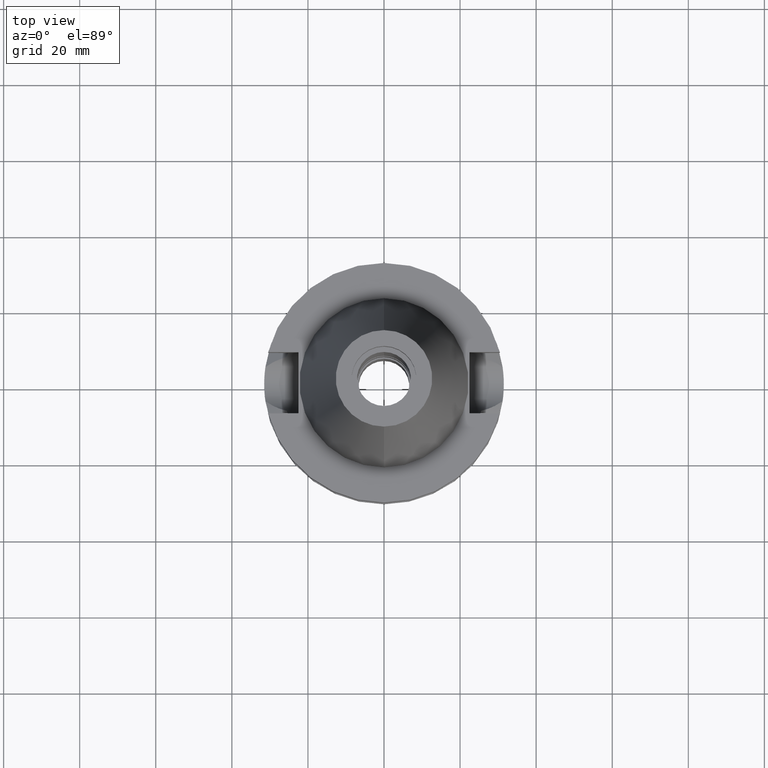
[diagram: clean part render]
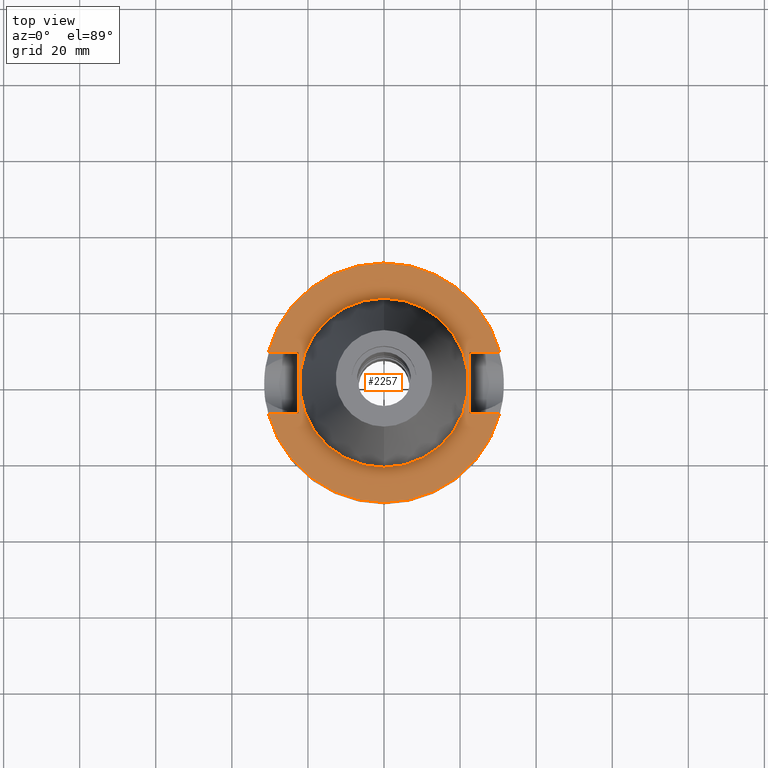
[diagram: same view with one face highlighted and labeled with its STEP entity id]
A machine part, top view. The second image highlights one B-rep face of the part: STEP entity #2257.
In plain terms, the highlighted planar face has unit normal (0, 0, -1).
Its self-contained STEP definition (entity closure, byte-faithful):
#2 = CARTESIAN_POINT ( 'NONE',  ( -22.50000000000000000, -8.050000000000000711, -1.000000000000000000 ) ) ;
#6 = EDGE_CURVE ( 'NONE', #270, #3096, #777, .T. ) ;
#19 = AXIS2_PLACEMENT_3D ( 'NONE', #2050, #812, #845 ) ;
#46 = LINE ( 'NONE', #2, #2145 ) ;
#117 = VECTOR ( 'NONE', #2004, 1000.000000000000000 ) ;
#163 = CIRCLE ( 'NONE', #1880, 31.50000000000000000 ) ;
#207 = CARTESIAN_POINT ( 'NONE',  ( 30.45402272279000044, -8.050000000000000711, -1.000000000000000000 ) ) ;
#214 = ORIENTED_EDGE ( 'NONE', *, *, #1451, .F. ) ;
#220 = DIRECTION ( 'NONE',  ( 0.0000000000000000000, -1.000000000000000000, 0.0000000000000000000 ) ) ;
#235 = CARTESIAN_POINT ( 'NONE',  ( 22.50000000000000000, -8.050000000000000711, -1.000000000000000000 ) ) ;
#270 = VERTEX_POINT ( 'NONE', #2105 ) ;
#297 = LINE ( 'NONE', #235, #2852 ) ;
#356 = VECTOR ( 'NONE', #427, 1000.000000000000000 ) ;
#399 = ORIENTED_EDGE ( 'NONE', *, *, #2948, .T. ) ;
#412 = CARTESIAN_POINT ( 'NONE',  ( -22.50000000000000000, -8.050000000000000711, -1.000000000000000000 ) ) ;
#427 = DIRECTION ( 'NONE',  ( -1.000000000000000000, 3.550916904668000126E-14, 0.0000000000000000000 ) ) ;
#440 = DIRECTION ( 'NONE',  ( 0.0000000000000000000, 0.0000000000000000000, 1.000000000000000000 ) ) ;
#441 = EDGE_CURVE ( 'NONE', #1124, #732, #1222, .T. ) ;
#463 = CARTESIAN_POINT ( 'NONE',  ( -22.50000000000000000, 8.050000000000000711, -1.000000000000000000 ) ) ;
#464 = DIRECTION ( 'NONE',  ( 0.0000000000000000000, 0.0000000000000000000, -1.000000000000000000 ) ) ;
#516 = VECTOR ( 'NONE', #1859, 1000.000000000000000 ) ;
#549 = ORIENTED_EDGE ( 'NONE', *, *, #2914, .F. ) ;
#611 = AXIS2_PLACEMENT_3D ( 'NONE', #2649, #464, #220 ) ;
#694 = CARTESIAN_POINT ( 'NONE',  ( 0.0000000000000000000, 22.22500000000000142, -1.000000000000000000 ) ) ;
#718 = ORIENTED_EDGE ( 'NONE', *, *, #852, .T. ) ;
#727 = DIRECTION ( 'NONE',  ( 0.0000000000000000000, 1.000000000000000000, 0.0000000000000000000 ) ) ;
#732 = VERTEX_POINT ( 'NONE', #694 ) ;
#748 = VERTEX_POINT ( 'NONE', #463 ) ;
#777 = LINE ( 'NONE', #1493, #117 ) ;
#812 = DIRECTION ( 'NONE',  ( 0.0000000000000000000, 0.0000000000000000000, 1.000000000000000000 ) ) ;
#845 = DIRECTION ( 'NONE',  ( 0.0000000000000000000, -1.000000000000000000, 0.0000000000000000000 ) ) ;
#852 = EDGE_CURVE ( 'NONE', #2310, #2432, #2590, .T. ) ;
#856 = CARTESIAN_POINT ( 'NONE',  ( -22.50000000000000000, 8.050000000000000711, -1.000000000000000000 ) ) ;
#904 = LINE ( 'NONE', #856, #2802 ) ;
#992 = ORIENTED_EDGE ( 'NONE', *, *, #1365, .F. ) ;
#1010 = CIRCLE ( 'NONE', #2651, 31.50000000000000000 ) ;
#1095 = CARTESIAN_POINT ( 'NONE',  ( -30.45402272279000044, 8.050000000000000711, -1.000000000000000000 ) ) ;
#1124 = VERTEX_POINT ( 'NONE', #2925 ) ;
#1158 = CIRCLE ( 'NONE', #3001, 22.22500000000000142 ) ;
#1190 = VERTEX_POINT ( 'NONE', #2202 ) ;
#1200 = CARTESIAN_POINT ( 'NONE',  ( -22.50000000000000000, -8.050000000000000711, -1.000000000000000000 ) ) ;
#1222 = CIRCLE ( 'NONE', #19, 22.22500000000000142 ) ;
#1285 = DIRECTION ( 'NONE',  ( 0.0000000000000000000, -1.000000000000000000, 0.0000000000000000000 ) ) ;
#1365 = EDGE_CURVE ( 'NONE', #2380, #2432, #1010, .T. ) ;
#1451 = EDGE_CURVE ( 'NONE', #732, #1124, #1158, .T. ) ;
#1493 = CARTESIAN_POINT ( 'NONE',  ( 22.50000000000000000, 8.050000000000000711, -1.000000000000000000 ) ) ;
#1649 = CARTESIAN_POINT ( 'NONE',  ( 0.0000000000000000000, 2.125313287579999899E-14, -1.000000000000000000 ) ) ;
#1663 = DIRECTION ( 'NONE',  ( 0.0000000000000000000, 1.000000000000000000, 0.0000000000000000000 ) ) ;
#1706 = DIRECTION ( 'NONE',  ( 1.000000000000000000, 3.573249715389999860E-14, 0.0000000000000000000 ) ) ;
#1813 = DIRECTION ( 'NONE',  ( 0.0000000000000000000, 0.0000000000000000000, -1.000000000000000000 ) ) ;
#1859 = DIRECTION ( 'NONE',  ( 1.000000000000000000, -3.506251283225999947E-14, 0.0000000000000000000 ) ) ;
#1880 = AXIS2_PLACEMENT_3D ( 'NONE', #2060, #1813, #2561 ) ;
#1963 = ORIENTED_EDGE ( 'NONE', *, *, #6, .F. ) ;
#2004 = DIRECTION ( 'NONE',  ( 0.0000000000000000000, -1.000000000000000000, 0.0000000000000000000 ) ) ;
#2050 = CARTESIAN_POINT ( 'NONE',  ( 0.0000000000000000000, 2.125313287579999899E-14, -1.000000000000000000 ) ) ;
#2060 = CARTESIAN_POINT ( 'NONE',  ( 0.0000000000000000000, 2.125313287579999899E-14, -1.000000000000000000 ) ) ;
#2073 = CARTESIAN_POINT ( 'NONE',  ( 0.0000000000000000000, 2.125313287579999899E-14, -1.000000000000000000 ) ) ;
#2105 = CARTESIAN_POINT ( 'NONE',  ( 22.50000000000000000, 8.050000000000000711, -1.000000000000000000 ) ) ;
#2109 = EDGE_LOOP ( 'NONE', ( #214, #2864 ) ) ;
#2145 = VECTOR ( 'NONE', #727, 1000.000000000000000 ) ;
#2185 = CARTESIAN_POINT ( 'NONE',  ( 22.50000000000000000, -8.050000000000000711, -1.000000000000000000 ) ) ;
#2202 = CARTESIAN_POINT ( 'NONE',  ( 30.45402272279000044, 8.050000000000000711, -1.000000000000000000 ) ) ;
#2253 = ORIENTED_EDGE ( 'NONE', *, *, #2521, .F. ) ;
#2257 = ADVANCED_FACE ( 'NONE', ( #2867, #2582 ), #2597, .F. ) ;
#2310 = VERTEX_POINT ( 'NONE', #1200 ) ;
#2380 = VERTEX_POINT ( 'NONE', #207 ) ;
#2432 = VERTEX_POINT ( 'NONE', #3095 ) ;
#2448 = EDGE_CURVE ( 'NONE', #2310, #748, #46, .T. ) ;
#2506 = DIRECTION ( 'NONE',  ( 0.0000000000000000000, 0.0000000000000000000, -1.000000000000000000 ) ) ;
#2521 = EDGE_CURVE ( 'NONE', #3096, #2380, #297, .T. ) ;
#2561 = DIRECTION ( 'NONE',  ( 0.0000000000000000000, 1.000000000000000000, 0.0000000000000000000 ) ) ;
#2582 = FACE_BOUND ( 'NONE', #2109, .T. ) ;
#2590 = LINE ( 'NONE', #412, #356 ) ;
#2593 = ORIENTED_EDGE ( 'NONE', *, *, #2984, .F. ) ;
#2597 = PLANE ( 'NONE',  #611 ) ;
#2629 = ORIENTED_EDGE ( 'NONE', *, *, #2448, .F. ) ;
#2649 = CARTESIAN_POINT ( 'NONE',  ( 0.0000000000000000000, 1.212400331155999925E-14, -1.000000000000000000 ) ) ;
#2651 = AXIS2_PLACEMENT_3D ( 'NONE', #2073, #2506, #1285 ) ;
#2687 = EDGE_LOOP ( 'NONE', ( #718, #992, #2253, #1963, #399, #549, #2593, #2629 ) ) ;
#2802 = VECTOR ( 'NONE', #2857, 1000.000000000000000 ) ;
#2852 = VECTOR ( 'NONE', #1706, 1000.000000000000000 ) ;
#2857 = DIRECTION ( 'NONE',  ( -1.000000000000000000, -3.550916904668000126E-14, 0.0000000000000000000 ) ) ;
#2864 = ORIENTED_EDGE ( 'NONE', *, *, #441, .F. ) ;
#2867 = FACE_OUTER_BOUND ( 'NONE', #2687, .T. ) ;
#2913 = VERTEX_POINT ( 'NONE', #1095 ) ;
#2914 = EDGE_CURVE ( 'NONE', #2913, #1190, #163, .T. ) ;
#2925 = CARTESIAN_POINT ( 'NONE',  ( 0.0000000000000000000, -22.22500000000000142, -1.000000000000000000 ) ) ;
#2948 = EDGE_CURVE ( 'NONE', #270, #1190, #3072, .T. ) ;
#2984 = EDGE_CURVE ( 'NONE', #748, #2913, #904, .T. ) ;
#3001 = AXIS2_PLACEMENT_3D ( 'NONE', #1649, #440, #1663 ) ;
#3053 = CARTESIAN_POINT ( 'NONE',  ( 22.50000000000000000, 8.050000000000000711, -1.000000000000000000 ) ) ;
#3072 = LINE ( 'NONE', #3053, #516 ) ;
#3095 = CARTESIAN_POINT ( 'NONE',  ( -30.45402272279000044, -8.050000000000000711, -1.000000000000000000 ) ) ;
#3096 = VERTEX_POINT ( 'NONE', #2185 ) ;